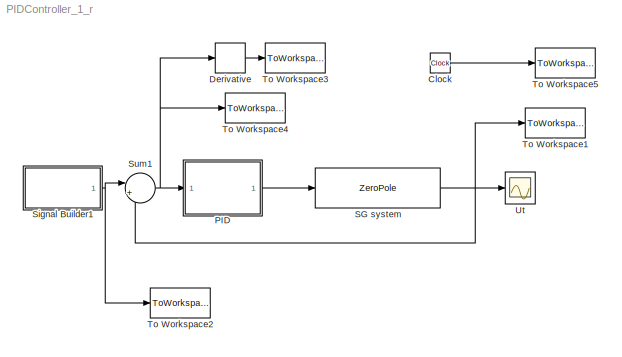
MODEL PIDController_1_r
KIND model
BLOCK [Clock] Clock
  Decimation = 10
BLOCK [Derivative] Derivative
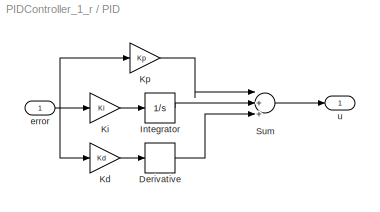
BLOCK [SubSystem] PID
  FunctionWithSeparateData = off
  MaskCallbackString = ||
  MaskDescription = Traditonal PID controller with three parameters:Proportional(Kp),Integral(Ki) and Derivative(Kd)
  MaskDisplay = disp('PID Controller')
  MaskEnableString = on,on,on
  MaskHideContents = off
  MaskIconFrame = on
  MaskIconOpaque = on
  MaskIconRotate = none
  MaskIconUnits = autoscale
  MaskPortRotate = default
  MaskPromptString = Proportional(Kp)|Integral(Ki)|Derivative(Kd)
  MaskStyleString = edit,edit,edit
  MaskTabNameString = ,,
  MaskToolTipString = on,on,on
  MaskTunableValueString = on,on,on
  MaskValueString = Kp_gui|Ki_gui|Kd_gui
  MaskVarAliasString = ,,
  MaskVariables = Kp=@1;Ki=@2;Kd=@3;
  MaskVisibilityString = on,on,on
  MinAlgLoopOccurrences = off
  Opaque = off
  Ports = [1, 1]
  PropExecContextOutsideSubsystem = off
  RTWSystemCode = Auto
  RequestExecContextInheritance = off
BLOCK [Derivative] PID/Derivative
BLOCK [Integrator] PID/Integrator
  Ports = [1, 1]
BLOCK [Gain] PID/Kd
  Gain = Kd
  OutDataType = fixdt(1, 16)
  OutDataTypeMode = Inherit via internal rule
  OutDataTypeStr = Inherit: Inherit via internal rule
  OutScaling = 2^0
  ParamDataTypeStr = Inherit: Inherit via internal rule
  ParameterDataType = fixdt(1, 16)
  ParameterDataTypeMode = Inherit via internal rule
  ParameterScaling = 2^0
  SaturateOnIntegerOverflow = off
BLOCK [Gain] PID/Ki
  Gain = Ki
  OutDataType = fixdt(1, 16)
  OutDataTypeMode = Inherit via internal rule
  OutDataTypeStr = Inherit: Inherit via internal rule
  OutScaling = 2^0
  ParamDataTypeStr = Inherit: Inherit via internal rule
  ParameterDataType = fixdt(1, 16)
  ParameterDataTypeMode = Inherit via internal rule
  ParameterScaling = 2^0
  SaturateOnIntegerOverflow = off
BLOCK [Gain] PID/Kp
  Gain = Kp
  OutDataType = fixdt(1, 16)
  OutDataTypeMode = Inherit via internal rule
  OutDataTypeStr = Inherit: Inherit via internal rule
  OutScaling = 2^0
  ParamDataTypeStr = Inherit: Inherit via internal rule
  ParameterDataType = fixdt(1, 16)
  ParameterDataTypeMode = Inherit via internal rule
  ParameterScaling = 2^0
  SaturateOnIntegerOverflow = off
BLOCK [Sum] PID/Sum
  InputSameDT = off
  Inputs = |+++
  OutDataType = fixdt(1, 16)
  OutDataTypeMode = Inherit via internal rule
  OutDataTypeStr = Inherit: Inherit via internal rule
  OutScaling = 2^0
  Ports = [3, 1]
  SaturateOnIntegerOverflow = off
BLOCK [Inport] PID/error
  IconDisplay = Port number
  OutDataType = fixdt(1, 16)
  OutScaling = 2^0
BLOCK [Outport] PID/u
  IconDisplay = Port number
  OutDataType = fixdt(1, 16)
  OutScaling = 2^0
BLOCK [ZeroPole] SG system
  Gain = 20000
  Poles = [-1/6 -20 -100]
  Zeros = []
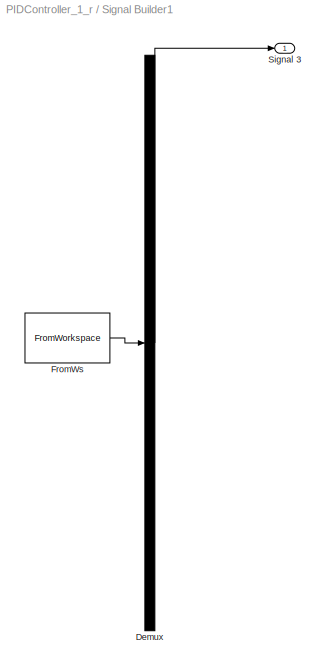
BLOCK [SubSystem] Signal Builder1
  ClipboardFcn = sigbuilder_block('clipboard');
  CloseFcn = sigbuilder_block('close');
  CopyFcn = sigbuilder_block('copy');
  DeleteFcn = sigbuilder_block('delete');
  FunctionWithSeparateData = off
  LoadFcn = sigbuilder_block('load');
  MaskCapabilities = slmaskedcaps(gcbh)
  MaskDescription = Sigbuilder GUI
  MaskDisplay = plot(0,0,100,100,[10,10,40,40,10],[80,20,20,80,80],[40,10],[50,50], [40,27,10],[65,72,56],[40,25,25,10],[28,28,43,43]);
  MaskHideContents = off
  MaskIconFrame = on
  MaskIconOpaque = off
  MaskIconRotate = port
  MaskIconUnits = autoscale
  MaskInitialization = if ~strcmp(get_param(bdroot(gcbh),'SimulationStatus'),'stopped') tuvar = sigbuilder_block('maskInit'); end
  MaskPortRotate = default
  MaskSelfModifiable = on
  MaskType = Sigbuilder block
  MinAlgLoopOccurrences = off
  ModelCloseFcn = sigbuilder_block('modelClose');
  NameChangeFcn = sigbuilder_block('namechange');
  Opaque = off
  OpenFcn = sigbuilder_block('open',[3 45 954 496.5 ]);
  Ports = [0, 1]
  PreSaveFcn = sigbuilder_block('preSave');
  PropExecContextOutsideSubsystem = off
  RTWSystemCode = Auto
  RequestExecContextInheritance = off
  StartFcn = sigbuilder_block('start');
  StopFcn = sigbuilder_block('stop');
  Tag = STV Subsys
BLOCK [Demux] Signal Builder1/Demux
  Outputs = 1
  Ports = [1, 1]
  Tag = STV Demux
BLOCK [FromWorkspace] Signal Builder1/FromWs
  SampleTime = 0
  SigBuilderData = DataTag0
  Tag = STV FromWs
  VariableName = tuvar
  VnvData = DataTag1
  ZeroCross = on
BLOCK [Outport] Signal Builder1/Signal 3
  IconDisplay = Port number
  Tag = STV Outport
BLOCK [Sum] Sum1
  IconShape = round
  InputSameDT = off
  Inputs = |+-
  OutDataType = sfix(16)
  OutDataTypeMode = Inherit via internal rule
  OutDataTypeStr = Inherit: Inherit via internal rule
  OutScaling = 2^0
  Ports = [2, 1]
  SaturateOnIntegerOverflow = off
BLOCK [ToWorkspace] To Workspace1
  MaxDataPoints = inf
  SampleTime = 0.001
  SaveFormat = Array
  VariableName = Ut
BLOCK [ToWorkspace] To Workspace2
  MaxDataPoints = inf
  SampleTime = 0.001
  SaveFormat = Array
  VariableName = Uref
BLOCK [ToWorkspace] To Workspace3
  MaxDataPoints = inf
  SampleTime = 0.001
  SaveFormat = Array
  VariableName = ec
BLOCK [ToWorkspace] To Workspace4
  MaxDataPoints = inf
  SampleTime = 0.001
  SaveFormat = Array
  VariableName = e
BLOCK [ToWorkspace] To Workspace5
  MaxDataPoints = inf
  SampleTime = 0.001
  SaveFormat = Array
  VariableName = t
BLOCK [Scope] Ut
  DataFormat = StructureWithTime
  Floating = off
  NumInputPorts = 1
  Ports = [1]
  SampleTime = 0
  TimeRange = 3
  YMax = 2
  YMin = 0
LINE Clock:1 -> To Workspace5:1
LINE Derivative:1 -> To Workspace3:1
LINE PID/Derivative:1 -> PID/Sum:3
LINE PID/Integrator:1 -> PID/Sum:2
LINE PID/Kd:1 -> PID/Derivative:1
LINE PID/Ki:1 -> PID/Integrator:1
LINE PID/Kp:1 -> PID/Sum:1
LINE PID/Sum:1 -> PID/u:1
NET PID/error:1 -> PID/Kd:1, PID/Ki:1, PID/Kp:1
LINE PID:1 -> SG system:1
NET SG system:1 -> Sum1:2, To Workspace1:1, Ut:1
LINE Signal Builder1/Demux:1 -> Signal Builder1/Signal 3:1
LINE Signal Builder1/FromWs:1 -> Signal Builder1/Demux:1
NET Signal Builder1:1 -> Sum1:1, To Workspace2:1
NET Sum1:1 -> Derivative:1, PID:1, To Workspace4:1
note: NET lines group one-source signal fan-out (src -> all destinations, sorted); 1:1 wires keep LINE
